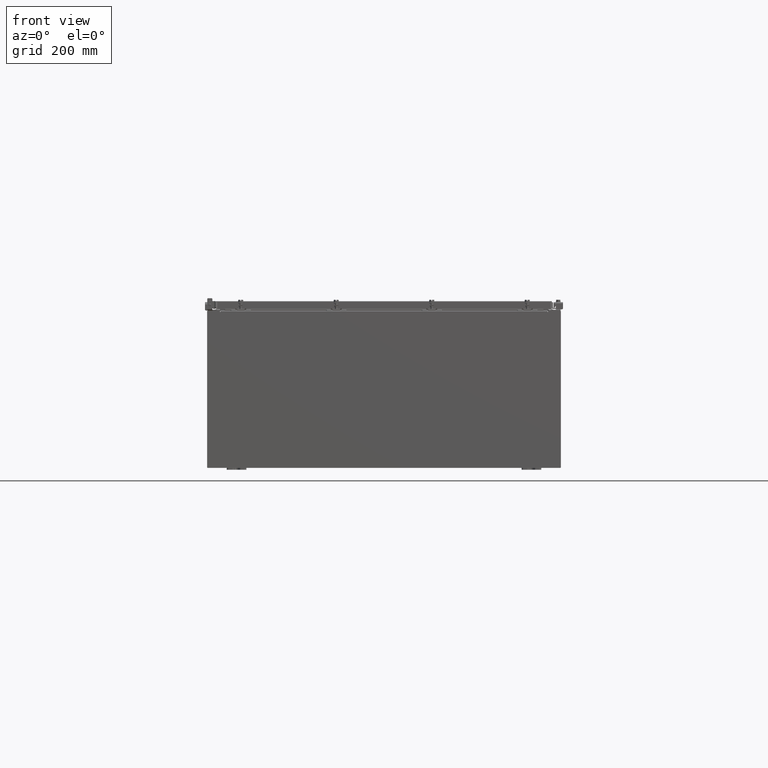
[diagram: clean part render]
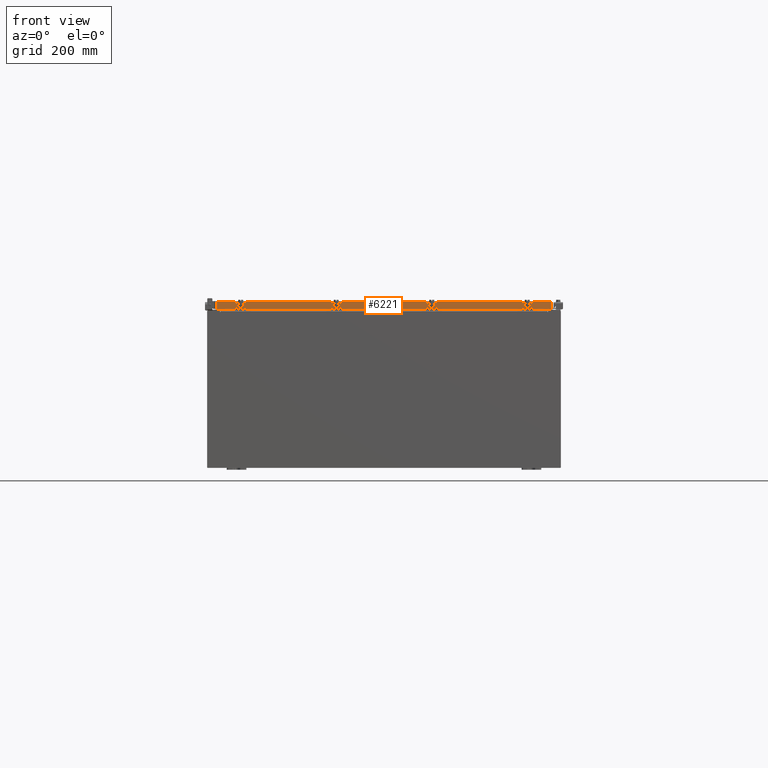
[diagram: same view with one face highlighted and labeled with its STEP entity id]
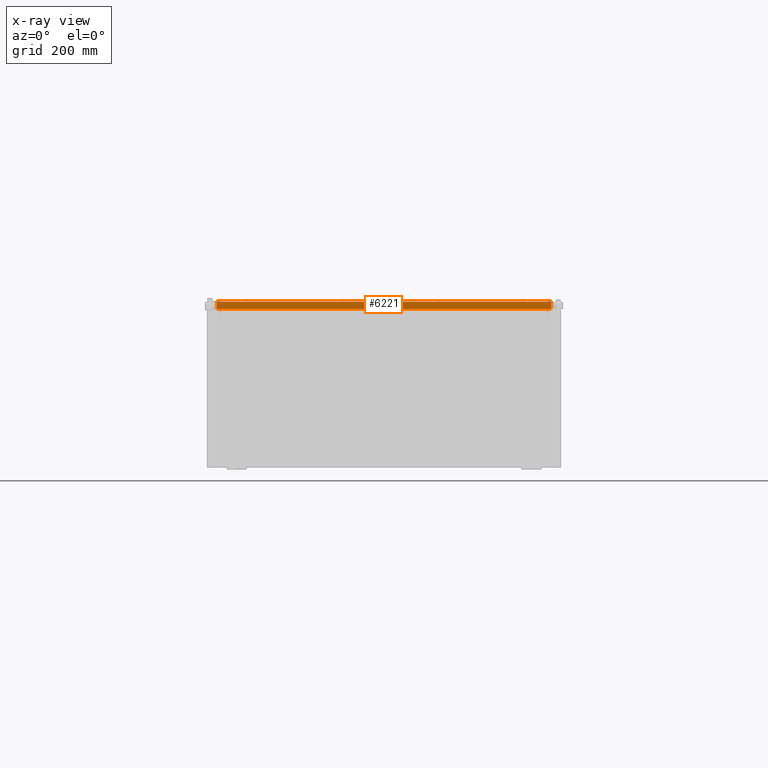
[diagram: x-ray of the same camera — body ghosted, the highlighted face saturated]
A machine part, front view. The second image highlights one B-rep face of the part: STEP entity #6221.
The next image is the same camera in x-ray: the body ghosted, the highlighted face saturated — about 0% of this face is hidden behind the body in this view.
In plain terms, the highlighted planar face has unit normal (-0, 1, -0).
Its self-contained STEP definition (entity closure, byte-faithful):
#341 = CARTESIAN_POINT ( 'NONE',  ( 16.98915786437627100, -29.09400000000000800, -0.8499999999999996400 ) ) ;
#1158 = DIRECTION ( 'NONE',  ( -0.0000000000000000000, -5.637761885544721800E-015, -1.000000000000000000 ) ) ;
#1520 = VECTOR ( 'NONE', #26492, 39.37007874015748100 ) ;
#1811 = EDGE_CURVE ( 'NONE', #23245, #21581, #15397, .T. ) ;
#2174 = LINE ( 'NONE', #13709, #1520 ) ;
#2259 = VECTOR ( 'NONE', #1158, 39.37007874015748100 ) ;
#2468 = EDGE_CURVE ( 'NONE', #24924, #16445, #19718, .T. ) ;
#2944 = DIRECTION ( 'NONE',  ( -6.989207801985715000E-031, 1.000000000000000000, -5.637761885544721100E-015 ) ) ;
#3384 = ORIENTED_EDGE ( 'NONE', *, *, #26425, .F. ) ;
#4103 = VECTOR ( 'NONE', #5678, 39.37007874015748100 ) ;
#4906 = ORIENTED_EDGE ( 'NONE', *, *, #21576, .F. ) ;
#4938 = AXIS2_PLACEMENT_3D ( 'NONE', #22033, #2944, #17840 ) ;
#5594 = VECTOR ( 'NONE', #20888, 39.37007874015748100 ) ;
#5597 = CARTESIAN_POINT ( 'NONE',  ( 17.07800000000000700, -29.09400000000000800, -0.8499999999999996400 ) ) ;
#5678 = DIRECTION ( 'NONE',  ( -1.000000000000000000, -0.0000000000000000000, 1.239713195391617100E-016 ) ) ;
#6221 = ADVANCED_FACE ( 'NONE', ( #7762 ), #21950, .F. ) ;
#7210 = LINE ( 'NONE', #7454, #2259 ) ;
#7246 = DIRECTION ( 'NONE',  ( 0.0000000000000000000, -5.637761885544721800E-015, -1.000000000000000000 ) ) ;
#7367 = CARTESIAN_POINT ( 'NONE',  ( 16.23915786437626700, -29.09400000000000800, -0.8499999999999972000 ) ) ;
#7454 = CARTESIAN_POINT ( 'NONE',  ( 16.98915786437627100, -29.09400000000000500, -0.07469999999999958600 ) ) ;
#7562 = ORIENTED_EDGE ( 'NONE', *, *, #2468, .F. ) ;
#7762 = FACE_OUTER_BOUND ( 'NONE', #17408, .T. ) ;
#7961 = DIRECTION ( 'NONE',  ( -1.000000000000000000, -0.0000000000000000000, 1.239713195391617100E-016 ) ) ;
#9187 = CARTESIAN_POINT ( 'NONE',  ( 16.98915786437627100, -29.09400000000000500, -0.08769999999999549000 ) ) ;
#9278 = EDGE_CURVE ( 'NONE', #9930, #16445, #11135, .T. ) ;
#9930 = VERTEX_POINT ( 'NONE', #11353 ) ;
#10688 = VERTEX_POINT ( 'NONE', #9187 ) ;
#11135 = LINE ( 'NONE', #11572, #16134 ) ;
#11353 = CARTESIAN_POINT ( 'NONE',  ( -16.98915786437626400, -29.09400000000000500, -0.08769999999999547600 ) ) ;
#11572 = CARTESIAN_POINT ( 'NONE',  ( -16.98915786437626400, -29.09400000000000500, 1.642858579540497200E-013 ) ) ;
#12267 = CARTESIAN_POINT ( 'NONE',  ( 17.07800000000000700, -29.09400000000000800, -0.8499999999999996400 ) ) ;
#12610 = LINE ( 'NONE', #18735, #5594 ) ;
#13709 = CARTESIAN_POINT ( 'NONE',  ( 16.23915786437627100, -29.09400000000000800, -0.8499999999999972000 ) ) ;
#15397 = LINE ( 'NONE', #5597, #4103 ) ;
#16134 = VECTOR ( 'NONE', #7246, 39.37007874015748100 ) ;
#16445 = VERTEX_POINT ( 'NONE', #22486 ) ;
#16720 = ORIENTED_EDGE ( 'NONE', *, *, #9278, .T. ) ;
#17408 = EDGE_LOOP ( 'NONE', ( #22888, #16720, #7562, #4906, #17774, #3384 ) ) ;
#17774 = ORIENTED_EDGE ( 'NONE', *, *, #1811, .F. ) ;
#17840 = DIRECTION ( 'NONE',  ( 0.0000000000000000000, 5.637761885544721100E-015, 1.000000000000000000 ) ) ;
#18735 = CARTESIAN_POINT ( 'NONE',  ( 17.07800000000000300, -29.09400000000000500, -0.08769999999999547600 ) ) ;
#19718 = LINE ( 'NONE', #12267, #24740 ) ;
#20888 = DIRECTION ( 'NONE',  ( 1.000000000000000000, 6.989207801985715000E-031, -3.922586267643549100E-045 ) ) ;
#21576 = EDGE_CURVE ( 'NONE', #21581, #24924, #2174, .T. ) ;
#21581 = VERTEX_POINT ( 'NONE', #7367 ) ;
#21950 = PLANE ( 'NONE',  #4938 ) ;
#22033 = CARTESIAN_POINT ( 'NONE',  ( 2.033440117909724100E-029, -29.09400000000000500, 1.642858579540497200E-013 ) ) ;
#22486 = CARTESIAN_POINT ( 'NONE',  ( -16.98915786437626400, -29.09400000000000800, -0.8499999999999954300 ) ) ;
#22888 = ORIENTED_EDGE ( 'NONE', *, *, #25400, .F. ) ;
#23245 = VERTEX_POINT ( 'NONE', #341 ) ;
#24740 = VECTOR ( 'NONE', #7961, 39.37007874015748100 ) ;
#24924 = VERTEX_POINT ( 'NONE', #25723 ) ;
#25400 = EDGE_CURVE ( 'NONE', #9930, #10688, #12610, .T. ) ;
#25723 = CARTESIAN_POINT ( 'NONE',  ( -16.23915786437626700, -29.09400000000000800, -0.8499999999999972000 ) ) ;
#26425 = EDGE_CURVE ( 'NONE', #10688, #23245, #7210, .T. ) ;
#26492 = DIRECTION ( 'NONE',  ( -1.000000000000000000, 0.0000000000000000000, 0.0000000000000000000 ) ) ;